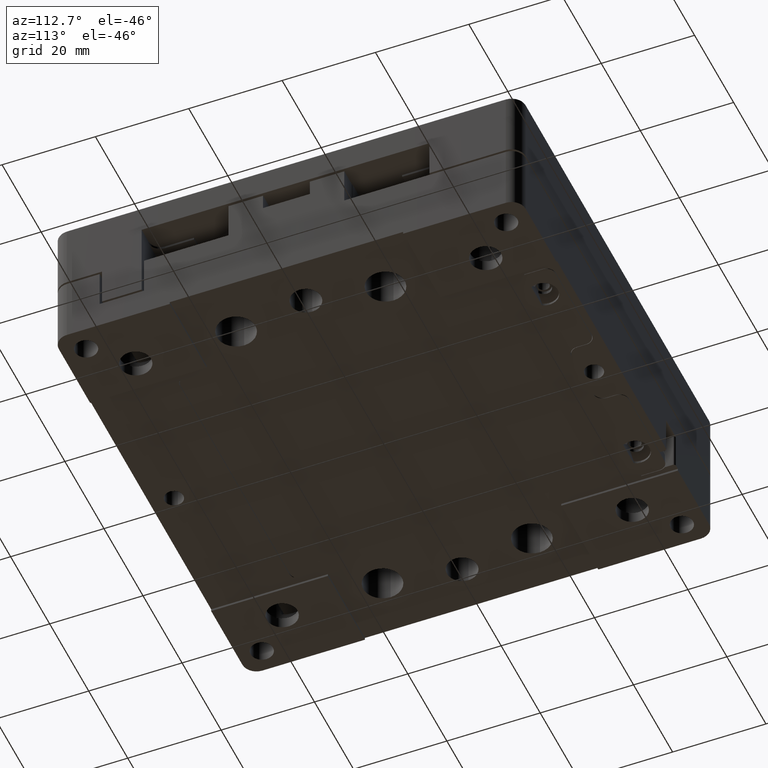
[diagram: clean part render]
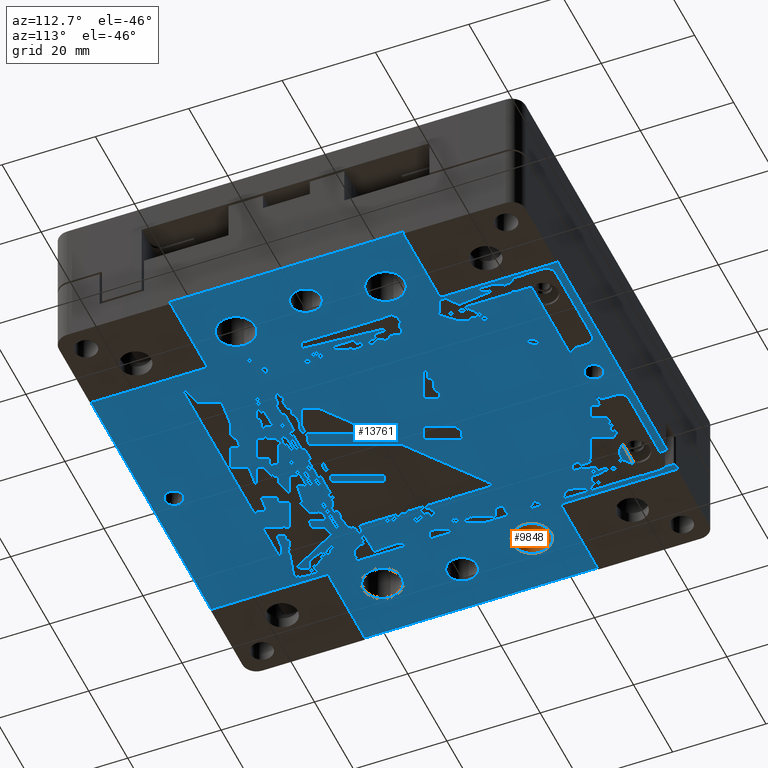
[diagram: same view with the hole feature highlighted: cylindrical wall and planar end face, labeled with their STEP entity ids]
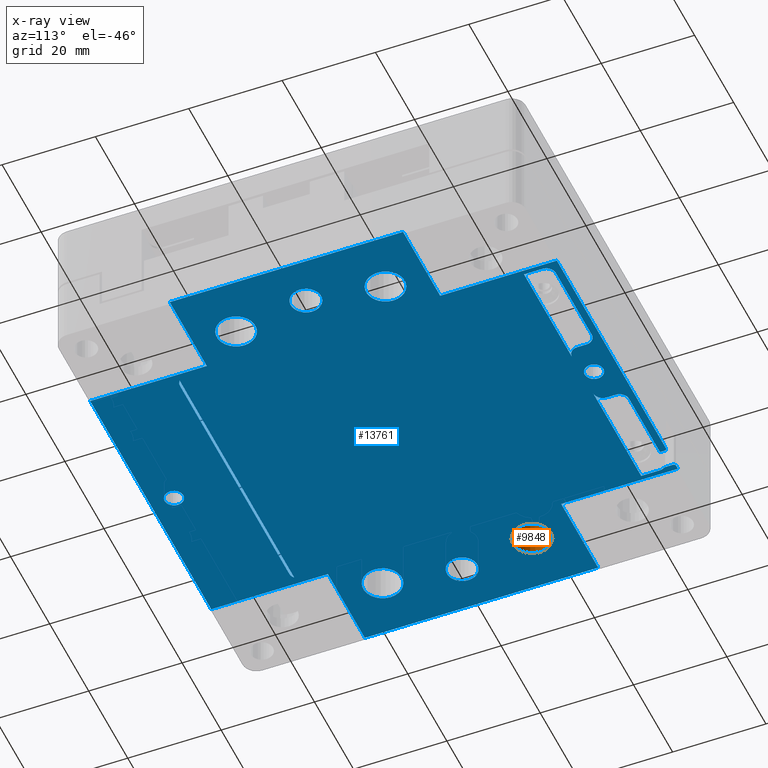
[diagram: x-ray of the same camera — body ghosted, the hole faces saturated]
A machine part, auxiliary view. The highlighted faces form one hole feature of diameter 8.25 mm: the cylindrical wall (entity #9848, orange) and its adjacent planar end face (entity #13761, blue) — they share a circular edge in the B-rep.
The next image is the same camera in x-ray (body ghosted, the hole faces saturated) — the bore reads through the body.
Wall:
#220 = AXIS2_PLACEMENT_3D ( 'NONE', #3022, #4112, #14363 ) ;
#705 = CARTESIAN_POINT ( 'NONE',  ( -41.62499999999999289, 16.00000000000000000, -4.000000000000001776 ) ) ;
#903 = EDGE_LOOP ( 'NONE', ( #3231 ) ) ;
#1030 = DIRECTION ( 'NONE',  ( 0.000000000000000000, 0.000000000000000000, -1.000000000000000000 ) ) ;
#1107 = DIRECTION ( 'NONE',  ( -1.000000000000000000, 0.000000000000000000, 0.000000000000000000 ) ) ;
#2699 = CARTESIAN_POINT ( 'NONE',  ( -37.50000000000000000, 16.00000000000000000, -14.00000000000000000 ) ) ;
#3022 = CARTESIAN_POINT ( 'NONE',  ( -37.50000000000000000, 16.00000000000000000, -4.000000000000001776 ) ) ;
#3231 = ORIENTED_EDGE ( 'NONE', *, *, #6617, .F. ) ;
#3498 = FACE_OUTER_BOUND ( 'NONE', #8961, .T. ) ;
#4112 = DIRECTION ( 'NONE',  ( 0.000000000000000000, 0.000000000000000000, -1.000000000000000000 ) ) ;
#5965 = CIRCLE ( 'NONE', #8081, 4.124999999999996447 ) ;
#6147 = CYLINDRICAL_SURFACE ( 'NONE', #6336, 4.124999999999996447 ) ;
#6336 = AXIS2_PLACEMENT_3D ( 'NONE', #7316, #1030, #1107 ) ;
#6516 = DIRECTION ( 'NONE',  ( -1.000000000000000000, 0.000000000000000000, 0.000000000000000000 ) ) ;
#6617 = EDGE_CURVE ( 'NONE', #12866, #12866, #5965, .T. ) ;
#7316 = CARTESIAN_POINT ( 'NONE',  ( -37.50000000000000000, 16.00000000000000000, 11.83399999999999963 ) ) ;
#8081 = AXIS2_PLACEMENT_3D ( 'NONE', #2699, #12789, #6516 ) ;
#8961 = EDGE_LOOP ( 'NONE', ( #15619 ) ) ;
#9848 = ADVANCED_FACE ( 'NONE', ( #3498, #16242 ), #6147, .F. ) ;
#10752 = EDGE_CURVE ( 'NONE', #13515, #13515, #12082, .T. ) ;
#12082 = CIRCLE ( 'NONE', #220, 4.124999999999996447 ) ;
#12789 = DIRECTION ( 'NONE',  ( -0.000000000000000000, -0.000000000000000000, 1.000000000000000000 ) ) ;
#12866 = VERTEX_POINT ( 'NONE', #15424 ) ;
#13515 = VERTEX_POINT ( 'NONE', #705 ) ;
#14363 = DIRECTION ( 'NONE',  ( -1.000000000000000000, 0.000000000000000000, 0.000000000000000000 ) ) ;
#15424 = CARTESIAN_POINT ( 'NONE',  ( -41.62499999999999289, 16.00000000000000000, -14.00000000000000000 ) ) ;
#15619 = ORIENTED_EDGE ( 'NONE', *, *, #10752, .F. ) ;
#16242 = FACE_OUTER_BOUND ( 'NONE', #903, .T. ) ;
End face:
#34 = EDGE_LOOP ( 'NONE', ( #10427 ) ) ;
#41 = VERTEX_POINT ( 'NONE', #5906 ) ;
#100 = DIRECTION ( 'NONE',  ( -1.000000000000000000, 0.000000000000000000, -0.000000000000000000 ) ) ;
#133 = CIRCLE ( 'NONE', #13113, 4.124999999999996447 ) ;
#172 = CARTESIAN_POINT ( 'NONE',  ( 0.000000000000000000, -32.00000000000000000, -14.00000000000000000 ) ) ;
#224 = CIRCLE ( 'NONE', #3912, 1.999999999999998224 ) ;
#244 = CARTESIAN_POINT ( 'NONE',  ( 0.000000000000000000, 48.50000000000000000, -14.00000000000000000 ) ) ;
#295 = ORIENTED_EDGE ( 'NONE', *, *, #3668, .T. ) ;
#352 = VERTEX_POINT ( 'NONE', #2844 ) ;
#377 = EDGE_CURVE ( 'NONE', #10018, #10954, #5140, .T. ) ;
#605 = DIRECTION ( 'NONE',  ( -1.000000000000000000, 0.000000000000000000, -0.000000000000000000 ) ) ;
#621 = CARTESIAN_POINT ( 'NONE',  ( 0.000000000000000000, 0.000000000000000000, -14.00000000000000000 ) ) ;
#674 = EDGE_CURVE ( 'NONE', #5287, #5287, #3040, .T. ) ;
#783 = CARTESIAN_POINT ( 'NONE',  ( 37.50000000000000000, -16.00000000000000000, -14.00000000000000000 ) ) ;
#899 = CARTESIAN_POINT ( 'NONE',  ( 40.00000000000000000, 0.000000000000000000, -14.00000000000000000 ) ) ;
#974 = DIRECTION ( 'NONE',  ( -1.000000000000000000, 0.000000000000000000, 0.000000000000000000 ) ) ;
#1028 = CARTESIAN_POINT ( 'NONE',  ( 31.00000000000000000, 0.000000000000000000, -14.00000000000000000 ) ) ;
#1105 = LINE ( 'NONE', #1028, #10948 ) ;
#1122 = DIRECTION ( 'NONE',  ( -0.000000000000000000, -0.000000000000000000, 1.000000000000000000 ) ) ;
#1147 = CARTESIAN_POINT ( 'NONE',  ( -50.00000000000000000, 0.000000000000000000, -14.00000000000000000 ) ) ;
#1156 = VECTOR ( 'NONE', #15170, 1000.000000000000000 ) ;
#1178 = DIRECTION ( 'NONE',  ( -0.000000000000000000, -0.000000000000000000, 1.000000000000000000 ) ) ;
#1184 = VERTEX_POINT ( 'NONE', #9182 ) ;
#1211 = VECTOR ( 'NONE', #7906, 1000.000000000000000 ) ;
#1302 = CARTESIAN_POINT ( 'NONE',  ( -24.89999999999999858, 49.50000000000000000, -13.99999999999999822 ) ) ;
#1349 = VERTEX_POINT ( 'NONE', #4904 ) ;
#1482 = DIRECTION ( 'NONE',  ( -1.000000000000000000, 0.000000000000000000, -0.000000000000000000 ) ) ;
#1489 = EDGE_CURVE ( 'NONE', #2828, #1671, #16030, .T. ) ;
#1520 = EDGE_CURVE ( 'NONE', #14131, #14131, #9936, .T. ) ;
#1525 = EDGE_CURVE ( 'NONE', #6116, #2413, #8092, .T. ) ;
#1592 = DIRECTION ( 'NONE',  ( -0.000000000000000000, -0.000000000000000000, 1.000000000000000000 ) ) ;
#1671 = VERTEX_POINT ( 'NONE', #14046 ) ;
#1712 = CARTESIAN_POINT ( 'NONE',  ( -30.00000000000000000, 46.50000000000000000, -14.00000000000000000 ) ) ;
#1716 = EDGE_LOOP ( 'NONE', ( #5338 ) ) ;
#1742 = LINE ( 'NONE', #5794, #6011 ) ;
#1747 = DIRECTION ( 'NONE',  ( -0.000000000000000000, -0.000000000000000000, 1.000000000000000000 ) ) ;
#1789 = CARTESIAN_POINT ( 'NONE',  ( 30.00000000000000000, 42.54999999999999716, -14.00000000000000000 ) ) ;
#1839 = CARTESIAN_POINT ( 'NONE',  ( 7.500000000000000000, 0.000000000000000000, -14.00000000000000000 ) ) ;
#1865 = EDGE_CURVE ( 'NONE', #10648, #1184, #9943, .T. ) ;
#1867 = VERTEX_POINT ( 'NONE', #10104 ) ;
#1894 = ORIENTED_EDGE ( 'NONE', *, *, #3029, .T. ) ;
#1916 = ORIENTED_EDGE ( 'NONE', *, *, #2617, .T. ) ;
#1965 = CARTESIAN_POINT ( 'NONE',  ( 0.000000000000000000, -25.00000000000000000, -14.00000000000000000 ) ) ;
#1986 = ORIENTED_EDGE ( 'NONE', *, *, #13974, .T. ) ;
#2013 = VERTEX_POINT ( 'NONE', #5318 ) ;
#2017 = FACE_BOUND ( 'NONE', #13599, .T. ) ;
#2170 = FACE_BOUND ( 'NONE', #2457, .T. ) ;
#2276 = LINE ( 'NONE', #9729, #14637 ) ;
#2341 = VERTEX_POINT ( 'NONE', #13656 ) ;
#2364 = ORIENTED_EDGE ( 'NONE', *, *, #2903, .T. ) ;
#2365 = VERTEX_POINT ( 'NONE', #5301 ) ;
#2366 = EDGE_CURVE ( 'NONE', #13954, #2828, #15302, .T. ) ;
#2413 = VERTEX_POINT ( 'NONE', #3976 ) ;
#2416 = CARTESIAN_POINT ( 'NONE',  ( 0.000000000000000000, -45.00000000000000000, -14.00000000000000000 ) ) ;
#2423 = DIRECTION ( 'NONE',  ( -0.000000000000000000, -1.000000000000000000, -0.000000000000000000 ) ) ;
#2449 = DIRECTION ( 'NONE',  ( 0.000000000000000000, 0.000000000000000000, 1.000000000000000000 ) ) ;
#2457 = EDGE_LOOP ( 'NONE', ( #15139 ) ) ;
#2525 = ORIENTED_EDGE ( 'NONE', *, *, #7386, .T. ) ;
#2531 = AXIS2_PLACEMENT_3D ( 'NONE', #10957, #1747, #12918 ) ;
#2617 = EDGE_CURVE ( 'NONE', #1184, #12116, #8377, .T. ) ;
#2678 = VERTEX_POINT ( 'NONE', #3731 ) ;
#2680 = CARTESIAN_POINT ( 'NONE',  ( 50.00000000000000000, 25.00000000000000000, -14.00000000000000000 ) ) ;
#2699 = CARTESIAN_POINT ( 'NONE',  ( -37.50000000000000000, 16.00000000000000000, -14.00000000000000000 ) ) ;
#2737 = VECTOR ( 'NONE', #14130, 1000.000000000000000 ) ;
#2759 = ORIENTED_EDGE ( 'NONE', *, *, #14060, .T. ) ;
#2828 = VERTEX_POINT ( 'NONE', #14253 ) ;
#2844 = CARTESIAN_POINT ( 'NONE',  ( -31.00000000000000000, 25.00000000000000000, -14.00000000000000000 ) ) ;
#2903 = EDGE_CURVE ( 'NONE', #3805, #14624, #1742, .T. ) ;
#3029 = EDGE_CURVE ( 'NONE', #2365, #9607, #11160, .T. ) ;
#3040 = CIRCLE ( 'NONE', #10706, 4.124999999999996447 ) ;
#3078 = DIRECTION ( 'NONE',  ( -0.000000000000000000, -1.000000000000000000, -0.000000000000000000 ) ) ;
#3134 = EDGE_LOOP ( 'NONE', ( #5836 ) ) ;
#3232 = CARTESIAN_POINT ( 'NONE',  ( 7.500000000000000000, 44.54999999999999716, -14.00000000000000000 ) ) ;
#3235 = CARTESIAN_POINT ( 'NONE',  ( -29.60000000000000142, 49.50000000000000000, -13.99999999999999822 ) ) ;
#3241 = CARTESIAN_POINT ( 'NONE',  ( -9.500000000000000000, 46.50000000000000000, -14.00000000000000000 ) ) ;
#3250 = DIRECTION ( 'NONE',  ( 0.000000000000000000, 0.000000000000000000, -1.000000000000000000 ) ) ;
#3311 = DIRECTION ( 'NONE',  ( -0.000000000000000000, -1.000000000000000000, -0.000000000000000000 ) ) ;
#3315 = VECTOR ( 'NONE', #100, 1000.000000000000000 ) ;
#3358 = AXIS2_PLACEMENT_3D ( 'NONE', #14854, #1122, #4839 ) ;
#3369 = DIRECTION ( 'NONE',  ( -1.000000000000000000, 0.000000000000000000, 0.000000000000000000 ) ) ;
#3453 = CARTESIAN_POINT ( 'NONE',  ( -30.00000000000000000, 42.54999999999999716, -14.00000000000000000 ) ) ;
#3480 = VERTEX_POINT ( 'NONE', #3453 ) ;
#3564 = CARTESIAN_POINT ( 'NONE',  ( 37.50000000000000000, 16.00000000000000000, -14.00000000000000000 ) ) ;
#3565 = VECTOR ( 'NONE', #3311, 1000.000000000000000 ) ;
#3668 = EDGE_CURVE ( 'NONE', #14555, #8988, #224, .T. ) ;
#3673 = CIRCLE ( 'NONE', #10814, 4.124999999999996447 ) ;
#3682 = EDGE_CURVE ( 'NONE', #6319, #41, #15189, .T. ) ;
#3731 = CARTESIAN_POINT ( 'NONE',  ( -28.00000000000000000, -32.00000000000000000, -14.00000000000000000 ) ) ;
#3805 = VERTEX_POINT ( 'NONE', #1789 ) ;
#3868 = CARTESIAN_POINT ( 'NONE',  ( -31.00000000000000000, 0.000000000000000000, -14.00000000000000000 ) ) ;
#3912 = AXIS2_PLACEMENT_3D ( 'NONE', #5030, #8816, #6175 ) ;
#3954 = DIRECTION ( 'NONE',  ( 0.000000000000000000, 1.000000000000000000, 0.000000000000000000 ) ) ;
#3976 = CARTESIAN_POINT ( 'NONE',  ( 5.499999999999999112, 42.54999999999999716, -14.00000000000000000 ) ) ;
#3993 = ORIENTED_EDGE ( 'NONE', *, *, #6106, .T. ) ;
#4077 = LINE ( 'NONE', #12926, #4606 ) ;
#4094 = LINE ( 'NONE', #14198, #1211 ) ;
#4151 = VERTEX_POINT ( 'NONE', #2680 ) ;
#4174 = AXIS2_PLACEMENT_3D ( 'NONE', #3241, #9378, #8286 ) ;
#4215 = EDGE_CURVE ( 'NONE', #5646, #8145, #14385, .T. ) ;
#4250 = DIRECTION ( 'NONE',  ( 0.000000000000000000, 0.000000000000000000, -1.000000000000000000 ) ) ;
#4252 = LINE ( 'NONE', #13253, #13477 ) ;
#4275 = CARTESIAN_POINT ( 'NONE',  ( -7.500000000000000000, 44.54999999999999716, -14.00000000000000000 ) ) ;
#4324 = VERTEX_POINT ( 'NONE', #10606 ) ;
#4325 = DIRECTION ( 'NONE',  ( -0.000000000000000000, -0.000000000000000000, 1.000000000000000000 ) ) ;
#4341 = ORIENTED_EDGE ( 'NONE', *, *, #14987, .F. ) ;
#4351 = AXIS2_PLACEMENT_3D ( 'NONE', #2416, #1178, #8872 ) ;
#4362 = ORIENTED_EDGE ( 'NONE', *, *, #6034, .T. ) ;
#4405 = DIRECTION ( 'NONE',  ( 1.000000000000000000, -0.000000000000000000, 0.000000000000000000 ) ) ;
#4431 = CIRCLE ( 'NONE', #3358, 3.250000000000002665 ) ;
#4474 = CARTESIAN_POINT ( 'NONE',  ( 28.00000000000000355, 48.50000000000000000, -14.00000000000000000 ) ) ;
#4483 = CARTESIAN_POINT ( 'NONE',  ( 0.000000000000000000, 50.00000000000000000, -14.00000000000000000 ) ) ;
#4522 = CARTESIAN_POINT ( 'NONE',  ( -9.499999999999998224, 48.50000000000000000, -14.00000000000000000 ) ) ;
#4593 = CARTESIAN_POINT ( 'NONE',  ( -29.60000000000000142, 0.000000000000000000, -14.00000000000000000 ) ) ;
#4606 = VECTOR ( 'NONE', #11687, 1000.000000000000000 ) ;
#4663 = CARTESIAN_POINT ( 'NONE',  ( 28.00000000000000000, 46.50000000000000000, -14.00000000000000000 ) ) ;
#4716 = DIRECTION ( 'NONE',  ( 0.000000000000000000, 1.000000000000000000, 0.000000000000000000 ) ) ;
#4839 = DIRECTION ( 'NONE',  ( -1.000000000000000000, 0.000000000000000000, 0.000000000000000000 ) ) ;
#4892 = VECTOR ( 'NONE', #2423, 1000.000000000000000 ) ;
#4904 = CARTESIAN_POINT ( 'NONE',  ( -2.000000000000000000, -45.00000000000000000, -14.00000000000000000 ) ) ;
#4939 = ORIENTED_EDGE ( 'NONE', *, *, #6105, .T. ) ;
#4940 = DIRECTION ( 'NONE',  ( -0.000000000000000000, -0.000000000000000000, 1.000000000000000000 ) ) ;
#5030 = CARTESIAN_POINT ( 'NONE',  ( -28.00000000000000000, 46.50000000000000000, -14.00000000000000000 ) ) ;
#5080 = ORIENTED_EDGE ( 'NONE', *, *, #1489, .T. ) ;
#5139 = AXIS2_PLACEMENT_3D ( 'NONE', #5399, #4250, #14265 ) ;
#5140 = CIRCLE ( 'NONE', #12532, 0.5000000000000004441 ) ;
#5187 = ORIENTED_EDGE ( 'NONE', *, *, #10085, .T. ) ;
#5215 = CARTESIAN_POINT ( 'NONE',  ( -29.60000000000000142, 47.70000000000000284, -14.00000000000000000 ) ) ;
#5229 = EDGE_CURVE ( 'NONE', #11113, #12832, #9643, .T. ) ;
#5271 = VECTOR ( 'NONE', #8484, 1000.000000000000000 ) ;
#5287 = VERTEX_POINT ( 'NONE', #10645 ) ;
#5301 = CARTESIAN_POINT ( 'NONE',  ( -50.00000000000000000, -25.00000000000000000, -14.00000000000000000 ) ) ;
#5318 = CARTESIAN_POINT ( 'NONE',  ( -25.39999999999999858, 49.50000000000000000, -13.99999999999999822 ) ) ;
#5338 = ORIENTED_EDGE ( 'NONE', *, *, #11740, .T. ) ;
#5345 = VERTEX_POINT ( 'NONE', #7908 ) ;
#5399 = CARTESIAN_POINT ( 'NONE',  ( -5.500000000000000000, 44.54999999999999716, -14.00000000000000000 ) ) ;
#5497 = DIRECTION ( 'NONE',  ( -1.000000000000000000, 0.000000000000000000, 0.000000000000000000 ) ) ;
#5531 = EDGE_CURVE ( 'NONE', #1867, #4151, #4094, .T. ) ;
#5612 = ORIENTED_EDGE ( 'NONE', *, *, #3682, .T. ) ;
#5646 = VERTEX_POINT ( 'NONE', #13344 ) ;
#5658 = FACE_BOUND ( 'NONE', #11640, .T. ) ;
#5662 = AXIS2_PLACEMENT_3D ( 'NONE', #621, #3250, #8295 ) ;
#5668 = EDGE_CURVE ( 'NONE', #14934, #14934, #133, .T. ) ;
#5794 = CARTESIAN_POINT ( 'NONE',  ( 30.00000000000000000, 0.000000000000000000, -14.00000000000000000 ) ) ;
#5802 = LINE ( 'NONE', #12085, #8846 ) ;
#5836 = ORIENTED_EDGE ( 'NONE', *, *, #13913, .T. ) ;
#5906 = CARTESIAN_POINT ( 'NONE',  ( -31.00000000000000000, -25.00000000000000000, -14.00000000000000000 ) ) ;
#5911 = ORIENTED_EDGE ( 'NONE', *, *, #8995, .T. ) ;
#5965 = CIRCLE ( 'NONE', #8081, 4.124999999999996447 ) ;
#5985 = VECTOR ( 'NONE', #11107, 1000.000000000000000 ) ;
#6011 = VECTOR ( 'NONE', #11750, 1000.000000000000000 ) ;
#6034 = EDGE_CURVE ( 'NONE', #9607, #352, #5802, .T. ) ;
#6061 = CARTESIAN_POINT ( 'NONE',  ( -7.500000000000000000, 0.000000000000000000, -14.00000000000000000 ) ) ;
#6105 = EDGE_CURVE ( 'NONE', #15899, #7940, #14820, .T. ) ;
#6106 = EDGE_CURVE ( 'NONE', #8988, #3480, #6959, .T. ) ;
#6116 = VERTEX_POINT ( 'NONE', #3232 ) ;
#6141 = CARTESIAN_POINT ( 'NONE',  ( -24.89999999999999858, 50.00000000000000000, -13.99999999999999822 ) ) ;
#6175 = DIRECTION ( 'NONE',  ( -1.000000000000000000, -1.040834085586085203E-14, 0.000000000000000000 ) ) ;
#6244 = EDGE_CURVE ( 'NONE', #4151, #13954, #16254, .T. ) ;
#6319 = VERTEX_POINT ( 'NONE', #14921 ) ;
#6322 = ORIENTED_EDGE ( 'NONE', *, *, #8142, .T. ) ;
#6434 = DIRECTION ( 'NONE',  ( -1.000000000000000000, 0.000000000000000000, -0.000000000000000000 ) ) ;
#6442 = VECTOR ( 'NONE', #9813, 1000.000000000000000 ) ;
#6516 = DIRECTION ( 'NONE',  ( -1.000000000000000000, 0.000000000000000000, 0.000000000000000000 ) ) ;
#6617 = EDGE_CURVE ( 'NONE', #12866, #12866, #5965, .T. ) ;
#6691 = ORIENTED_EDGE ( 'NONE', *, *, #15336, .T. ) ;
#6701 = CARTESIAN_POINT ( 'NONE',  ( 9.500000000000000000, 48.50000000000000000, -14.00000000000000000 ) ) ;
#6758 = DIRECTION ( 'NONE',  ( 0.000000000000000000, 1.000000000000000000, 0.000000000000000000 ) ) ;
#6818 = EDGE_LOOP ( 'NONE', ( #15645, #7727, #12049, #2525 ) ) ;
#6820 = ORIENTED_EDGE ( 'NONE', *, *, #5229, .T. ) ;
#6849 = AXIS2_PLACEMENT_3D ( 'NONE', #1302, #2449, #11398 ) ;
#6868 = LINE ( 'NONE', #1965, #3315 ) ;
#6910 = EDGE_CURVE ( 'NONE', #12832, #9819, #10731, .T. ) ;
#6959 = LINE ( 'NONE', #11998, #3565 ) ;
#7224 = FACE_BOUND ( 'NONE', #16069, .T. ) ;
#7314 = PLANE ( 'NONE',  #5662 ) ;
#7333 = CARTESIAN_POINT ( 'NONE',  ( 0.000000000000000000, 48.50000000000000000, -14.00000000000000000 ) ) ;
#7334 = LINE ( 'NONE', #14541, #6442 ) ;
#7350 = CARTESIAN_POINT ( 'NONE',  ( -37.50000000000000000, -16.00000000000000000, -14.00000000000000000 ) ) ;
#7373 = VECTOR ( 'NONE', #4716, 1000.000000000000000 ) ;
#7386 = EDGE_CURVE ( 'NONE', #2678, #5646, #15218, .T. ) ;
#7674 = EDGE_LOOP ( 'NONE', ( #8520 ) ) ;
#7727 = ORIENTED_EDGE ( 'NONE', *, *, #13010, .T. ) ;
#7783 = CIRCLE ( 'NONE', #5139, 2.000000000000000000 ) ;
#7802 = VECTOR ( 'NONE', #4405, 1000.000000000000000 ) ;
#7827 = ORIENTED_EDGE ( 'NONE', *, *, #2366, .T. ) ;
#7906 = DIRECTION ( 'NONE',  ( 1.000000000000000000, -0.000000000000000000, 0.000000000000000000 ) ) ;
#7908 = CARTESIAN_POINT ( 'NONE',  ( -43.25000000000000711, 0.000000000000000000, -14.00000000000000000 ) ) ;
#7940 = VERTEX_POINT ( 'NONE', #14458 ) ;
#7993 = ORIENTED_EDGE ( 'NONE', *, *, #5668, .T. ) ;
#8081 = AXIS2_PLACEMENT_3D ( 'NONE', #2699, #12789, #6516 ) ;
#8092 = CIRCLE ( 'NONE', #14181, 2.000000000000000000 ) ;
#8132 = LINE ( 'NONE', #1839, #14392 ) ;
#8142 = EDGE_CURVE ( 'NONE', #5345, #5345, #4431, .T. ) ;
#8145 = VERTEX_POINT ( 'NONE', #9883 ) ;
#8229 = VERTEX_POINT ( 'NONE', #10791 ) ;
#8286 = DIRECTION ( 'NONE',  ( -1.000000000000000000, 0.000000000000000000, 0.000000000000000000 ) ) ;
#8295 = DIRECTION ( 'NONE',  ( -1.000000000000000000, 0.000000000000000000, -0.000000000000000000 ) ) ;
#8377 = CIRCLE ( 'NONE', #4174, 2.000000000000000000 ) ;
#8435 = EDGE_CURVE ( 'NONE', #14624, #11113, #12673, .T. ) ;
#8448 = AXIS2_PLACEMENT_3D ( 'NONE', #4663, #15910, #12436 ) ;
#8484 = DIRECTION ( 'NONE',  ( -0.000000000000000000, -1.000000000000000000, -0.000000000000000000 ) ) ;
#8494 = DIRECTION ( 'NONE',  ( -1.000000000000000000, 0.000000000000000000, 0.000000000000000000 ) ) ;
#8520 = ORIENTED_EDGE ( 'NONE', *, *, #674, .T. ) ;
#8616 = DIRECTION ( 'NONE',  ( -0.000000000000000000, -0.000000000000000000, 1.000000000000000000 ) ) ;
#8645 = CARTESIAN_POINT ( 'NONE',  ( -5.499999999999999112, 42.54999999999999716, -14.00000000000000000 ) ) ;
#8683 = CARTESIAN_POINT ( 'NONE',  ( 30.00000000000000000, 46.50000000000000000, -14.00000000000000000 ) ) ;
#8741 = CARTESIAN_POINT ( 'NONE',  ( 5.500000000000000000, 44.54999999999999716, -14.00000000000000000 ) ) ;
#8753 = EDGE_CURVE ( 'NONE', #8229, #8229, #10041, .T. ) ;
#8816 = DIRECTION ( 'NONE',  ( -0.000000000000000000, -0.000000000000000000, 1.000000000000000000 ) ) ;
#8830 = EDGE_LOOP ( 'NONE', ( #3993, #15167, #2759, #13707, #1916, #5911, #14703, #4341, #4939, #13019, #13352, #14671, #7827, #5080, #5187, #5612, #12050, #1894, #4362, #10802, #11098, #13755, #6691, #295 ) ) ;
#8846 = VECTOR ( 'NONE', #14738, 1000.000000000000000 ) ;
#8872 = DIRECTION ( 'NONE',  ( -1.000000000000000000, 0.000000000000000000, 0.000000000000000000 ) ) ;
#8988 = VERTEX_POINT ( 'NONE', #1712 ) ;
#8995 = EDGE_CURVE ( 'NONE', #12116, #4324, #12972, .T. ) ;
#9155 = CIRCLE ( 'NONE', #13644, 1.999999999999998224 ) ;
#9182 = CARTESIAN_POINT ( 'NONE',  ( -7.500000000000000000, 46.50000000000000000, -14.00000000000000000 ) ) ;
#9378 = DIRECTION ( 'NONE',  ( -0.000000000000000000, -0.000000000000000000, 1.000000000000000000 ) ) ;
#9424 = ORIENTED_EDGE ( 'NONE', *, *, #8753, .T. ) ;
#9448 = DIRECTION ( 'NONE',  ( -0.000000000000000000, -0.000000000000000000, 1.000000000000000000 ) ) ;
#9607 = VERTEX_POINT ( 'NONE', #13268 ) ;
#9643 = LINE ( 'NONE', #7333, #13082 ) ;
#9729 = CARTESIAN_POINT ( 'NONE',  ( 0.000000000000000000, 42.54999999999999716, -14.00000000000000000 ) ) ;
#9771 = AXIS2_PLACEMENT_3D ( 'NONE', #899, #1592, #13169 ) ;
#9813 = DIRECTION ( 'NONE',  ( -0.000000000000000000, 1.000000000000000000, 0.000000000000000000 ) ) ;
#9819 = VERTEX_POINT ( 'NONE', #9865 ) ;
#9865 = CARTESIAN_POINT ( 'NONE',  ( 7.500000000000000000, 46.50000000000000000, -14.00000000000000000 ) ) ;
#9883 = CARTESIAN_POINT ( 'NONE',  ( 29.32287565553114916, -31.50000000000000000, -14.00000000000000000 ) ) ;
#9936 = CIRCLE ( 'NONE', #10205, 2.000000000000000000 ) ;
#9943 = LINE ( 'NONE', #6061, #5985 ) ;
#9985 = DIRECTION ( 'NONE',  ( 0.000000000000000000, 0.000000000000000000, -1.000000000000000000 ) ) ;
#10018 = VERTEX_POINT ( 'NONE', #3235 ) ;
#10041 = CIRCLE ( 'NONE', #9771, 3.250000000000002665 ) ;
#10085 = EDGE_CURVE ( 'NONE', #1671, #6319, #4252, .T. ) ;
#10104 = CARTESIAN_POINT ( 'NONE',  ( 31.00000000000000000, 25.00000000000000000, -14.00000000000000000 ) ) ;
#10155 = LINE ( 'NONE', #12640, #2737 ) ;
#10205 = AXIS2_PLACEMENT_3D ( 'NONE', #14788, #4940, #8494 ) ;
#10254 = VECTOR ( 'NONE', #3954, 1000.000000000000000 ) ;
#10260 = CARTESIAN_POINT ( 'NONE',  ( 0.000000000000000000, -25.00000000000000000, -14.00000000000000000 ) ) ;
#10427 = ORIENTED_EDGE ( 'NONE', *, *, #1520, .T. ) ;
#10447 = CARTESIAN_POINT ( 'NONE',  ( 50.00000000000000000, -25.00000000000000000, -14.00000000000000000 ) ) ;
#10481 = LINE ( 'NONE', #12787, #12881 ) ;
#10606 = CARTESIAN_POINT ( 'NONE',  ( -25.39999999999999503, 48.50000000000000711, -14.00000000000000000 ) ) ;
#10645 = CARTESIAN_POINT ( 'NONE',  ( 33.37500000000000000, 16.00000000000000000, -14.00000000000000000 ) ) ;
#10648 = VERTEX_POINT ( 'NONE', #4275 ) ;
#10686 = EDGE_CURVE ( 'NONE', #352, #12973, #10481, .T. ) ;
#10697 = CARTESIAN_POINT ( 'NONE',  ( -28.00000000000000000, -30.00000000000000000, -14.00000000000000000 ) ) ;
#10706 = AXIS2_PLACEMENT_3D ( 'NONE', #3564, #8616, #13671 ) ;
#10731 = CIRCLE ( 'NONE', #2531, 2.000000000000000000 ) ;
#10765 = CARTESIAN_POINT ( 'NONE',  ( 28.00000000000000000, -30.00000000000000000, -14.00000000000000000 ) ) ;
#10790 = FACE_BOUND ( 'NONE', #1716, .T. ) ;
#10791 = CARTESIAN_POINT ( 'NONE',  ( 36.75000000000000000, 0.000000000000000000, -14.00000000000000000 ) ) ;
#10802 = ORIENTED_EDGE ( 'NONE', *, *, #10686, .T. ) ;
#10814 = AXIS2_PLACEMENT_3D ( 'NONE', #7350, #14794, #3369 ) ;
#10815 = CIRCLE ( 'NONE', #6849, 0.5000000000000004441 ) ;
#10840 = EDGE_LOOP ( 'NONE', ( #7993 ) ) ;
#10872 = DIRECTION ( 'NONE',  ( -0.000000000000000000, -0.000000000000000000, 1.000000000000000000 ) ) ;
#10873 = FACE_OUTER_BOUND ( 'NONE', #8830, .T. ) ;
#10948 = VECTOR ( 'NONE', #12681, 1000.000000000000000 ) ;
#10954 = VERTEX_POINT ( 'NONE', #15141 ) ;
#10957 = CARTESIAN_POINT ( 'NONE',  ( 9.500000000000000000, 46.50000000000000000, -14.00000000000000000 ) ) ;
#10989 = CARTESIAN_POINT ( 'NONE',  ( -31.00000000000000000, 50.00000000000000000, -14.00000000000000000 ) ) ;
#11032 = FACE_BOUND ( 'NONE', #7674, .T. ) ;
#11098 = ORIENTED_EDGE ( 'NONE', *, *, #13499, .F. ) ;
#11107 = DIRECTION ( 'NONE',  ( 0.000000000000000000, 1.000000000000000000, 0.000000000000000000 ) ) ;
#11113 = VERTEX_POINT ( 'NONE', #4474 ) ;
#11160 = LINE ( 'NONE', #1147, #7373 ) ;
#11207 = LINE ( 'NONE', #16267, #1156 ) ;
#11361 = CARTESIAN_POINT ( 'NONE',  ( -41.62499999999999289, -16.00000000000000000, -14.00000000000000000 ) ) ;
#11398 = DIRECTION ( 'NONE',  ( 1.000000000000000000, 0.000000000000000000, 0.000000000000000000 ) ) ;
#11640 = EDGE_LOOP ( 'NONE', ( #15591, #1986, #2364, #14526, #6820, #15539, #16243 ) ) ;
#11687 = DIRECTION ( 'NONE',  ( 1.000000000000000000, -0.000000000000000000, 0.000000000000000000 ) ) ;
#11740 = EDGE_CURVE ( 'NONE', #13685, #13685, #3673, .T. ) ;
#11750 = DIRECTION ( 'NONE',  ( 0.000000000000000000, 1.000000000000000000, 0.000000000000000000 ) ) ;
#11998 = CARTESIAN_POINT ( 'NONE',  ( -30.00000000000000000, 0.000000000000000000, -14.00000000000000000 ) ) ;
#12049 = ORIENTED_EDGE ( 'NONE', *, *, #12590, .T. ) ;
#12050 = ORIENTED_EDGE ( 'NONE', *, *, #12717, .T. ) ;
#12085 = CARTESIAN_POINT ( 'NONE',  ( 0.000000000000000000, 25.00000000000000000, -14.00000000000000000 ) ) ;
#12116 = VERTEX_POINT ( 'NONE', #4522 ) ;
#12188 = FACE_BOUND ( 'NONE', #10840, .T. ) ;
#12262 = FACE_BOUND ( 'NONE', #3134, .T. ) ;
#12335 = VERTEX_POINT ( 'NONE', #8645 ) ;
#12374 = DIRECTION ( 'NONE',  ( 1.000000000000000000, -0.000000000000000000, 0.000000000000000000 ) ) ;
#12436 = DIRECTION ( 'NONE',  ( -1.000000000000000000, 0.000000000000000000, 0.000000000000000000 ) ) ;
#12532 = AXIS2_PLACEMENT_3D ( 'NONE', #15658, #4325, #5497 ) ;
#12590 = EDGE_CURVE ( 'NONE', #2341, #2678, #9155, .T. ) ;
#12594 = VECTOR ( 'NONE', #1482, 1000.000000000000000 ) ;
#12640 = CARTESIAN_POINT ( 'NONE',  ( 0.000000000000000000, -31.50000000000000000, -14.00000000000000000 ) ) ;
#12673 = CIRCLE ( 'NONE', #8448, 1.999999999999998224 ) ;
#12681 = DIRECTION ( 'NONE',  ( -0.000000000000000000, -1.000000000000000000, -0.000000000000000000 ) ) ;
#12717 = EDGE_CURVE ( 'NONE', #41, #2365, #6868, .T. ) ;
#12787 = CARTESIAN_POINT ( 'NONE',  ( -31.00000000000000000, 0.000000000000000000, -14.00000000000000000 ) ) ;
#12789 = DIRECTION ( 'NONE',  ( -0.000000000000000000, -0.000000000000000000, 1.000000000000000000 ) ) ;
#12832 = VERTEX_POINT ( 'NONE', #6701 ) ;
#12866 = VERTEX_POINT ( 'NONE', #15424 ) ;
#12881 = VECTOR ( 'NONE', #6758, 1000.000000000000000 ) ;
#12918 = DIRECTION ( 'NONE',  ( -1.000000000000000000, 0.000000000000000000, 0.000000000000000000 ) ) ;
#12926 = CARTESIAN_POINT ( 'NONE',  ( 0.000000000000000000, 42.54999999999999716, -14.00000000000000000 ) ) ;
#12972 = LINE ( 'NONE', #244, #14549 ) ;
#12973 = VERTEX_POINT ( 'NONE', #10989 ) ;
#13010 = EDGE_CURVE ( 'NONE', #8145, #2341, #10155, .T. ) ;
#13019 = ORIENTED_EDGE ( 'NONE', *, *, #13925, .T. ) ;
#13082 = VECTOR ( 'NONE', #14695, 1000.000000000000000 ) ;
#13105 = VECTOR ( 'NONE', #13461, 1000.000000000000000 ) ;
#13113 = AXIS2_PLACEMENT_3D ( 'NONE', #783, #10872, #15911 ) ;
#13169 = DIRECTION ( 'NONE',  ( -1.000000000000000000, 0.000000000000000000, 0.000000000000000000 ) ) ;
#13253 = CARTESIAN_POINT ( 'NONE',  ( 0.000000000000000000, -50.00000000000000000, -14.00000000000000000 ) ) ;
#13261 = DIRECTION ( 'NONE',  ( -1.000000000000000000, 0.000000000000000000, 0.000000000000000000 ) ) ;
#13268 = CARTESIAN_POINT ( 'NONE',  ( -50.00000000000000000, 25.00000000000000000, -14.00000000000000000 ) ) ;
#13307 = EDGE_CURVE ( 'NONE', #4324, #2013, #7334, .T. ) ;
#13331 = EDGE_CURVE ( 'NONE', #3480, #12335, #2276, .T. ) ;
#13344 = CARTESIAN_POINT ( 'NONE',  ( 28.00000000000000000, -32.00000000000000000, -14.00000000000000000 ) ) ;
#13352 = ORIENTED_EDGE ( 'NONE', *, *, #5531, .T. ) ;
#13461 = DIRECTION ( 'NONE',  ( -0.000000000000000000, -1.000000000000000000, -0.000000000000000000 ) ) ;
#13477 = VECTOR ( 'NONE', #605, 1000.000000000000000 ) ;
#13499 = EDGE_CURVE ( 'NONE', #10954, #12973, #11207, .T. ) ;
#13599 = EDGE_LOOP ( 'NONE', ( #6322 ) ) ;
#13644 = AXIS2_PLACEMENT_3D ( 'NONE', #10697, #15750, #13261 ) ;
#13656 = CARTESIAN_POINT ( 'NONE',  ( -29.32287565553114916, -31.50000000000000000, -14.00000000000000000 ) ) ;
#13671 = DIRECTION ( 'NONE',  ( -1.000000000000000000, 0.000000000000000000, 0.000000000000000000 ) ) ;
#13685 = VERTEX_POINT ( 'NONE', #11361 ) ;
#13707 = ORIENTED_EDGE ( 'NONE', *, *, #1865, .T. ) ;
#13755 = ORIENTED_EDGE ( 'NONE', *, *, #377, .F. ) ;
#13761 = ADVANCED_FACE ( 'NONE', ( #5658, #12188, #2170, #11032, #7224, #10790, #2017, #14598, #12262, #16085, #10873 ), #7314, .T. ) ;
#13913 = EDGE_CURVE ( 'NONE', #1349, #1349, #15173, .T. ) ;
#13925 = EDGE_CURVE ( 'NONE', #7940, #1867, #1105, .T. ) ;
#13954 = VERTEX_POINT ( 'NONE', #10447 ) ;
#13974 = EDGE_CURVE ( 'NONE', #2413, #3805, #4077, .T. ) ;
#14046 = CARTESIAN_POINT ( 'NONE',  ( 31.00000000000000000, -50.00000000000000000, -14.00000000000000000 ) ) ;
#14060 = EDGE_CURVE ( 'NONE', #12335, #10648, #7783, .T. ) ;
#14080 = EDGE_CURVE ( 'NONE', #9819, #6116, #8132, .T. ) ;
#14130 = DIRECTION ( 'NONE',  ( -1.000000000000000000, 0.000000000000000000, -0.000000000000000000 ) ) ;
#14131 = VERTEX_POINT ( 'NONE', #14461 ) ;
#14181 = AXIS2_PLACEMENT_3D ( 'NONE', #8741, #9985, #974 ) ;
#14198 = CARTESIAN_POINT ( 'NONE',  ( 0.000000000000000000, 25.00000000000000000, -14.00000000000000000 ) ) ;
#14253 = CARTESIAN_POINT ( 'NONE',  ( 31.00000000000000000, -25.00000000000000000, -14.00000000000000000 ) ) ;
#14265 = DIRECTION ( 'NONE',  ( -1.000000000000000000, 0.000000000000000000, 0.000000000000000000 ) ) ;
#14385 = CIRCLE ( 'NONE', #14902, 1.999999999999998224 ) ;
#14392 = VECTOR ( 'NONE', #3078, 1000.000000000000000 ) ;
#14458 = CARTESIAN_POINT ( 'NONE',  ( 31.00000000000000000, 50.00000000000000711, -14.00000000000000000 ) ) ;
#14461 = CARTESIAN_POINT ( 'NONE',  ( -2.000000000000000000, 45.00000000000000000, -14.00000000000000000 ) ) ;
#14526 = ORIENTED_EDGE ( 'NONE', *, *, #8435, .T. ) ;
#14541 = CARTESIAN_POINT ( 'NONE',  ( -25.39999999999999858, 40.00000000000000000, -14.00000000000000000 ) ) ;
#14549 = VECTOR ( 'NONE', #6434, 1000.000000000000000 ) ;
#14555 = VERTEX_POINT ( 'NONE', #5215 ) ;
#14598 = FACE_BOUND ( 'NONE', #34, .T. ) ;
#14621 = CARTESIAN_POINT ( 'NONE',  ( 50.00000000000000000, 0.000000000000000000, -14.00000000000000000 ) ) ;
#14624 = VERTEX_POINT ( 'NONE', #8683 ) ;
#14637 = VECTOR ( 'NONE', #12374, 1000.000000000000000 ) ;
#14671 = ORIENTED_EDGE ( 'NONE', *, *, #6244, .T. ) ;
#14695 = DIRECTION ( 'NONE',  ( -1.000000000000000000, 0.000000000000000000, -0.000000000000000000 ) ) ;
#14703 = ORIENTED_EDGE ( 'NONE', *, *, #13307, .T. ) ;
#14738 = DIRECTION ( 'NONE',  ( 1.000000000000000000, -0.000000000000000000, 0.000000000000000000 ) ) ;
#14788 = CARTESIAN_POINT ( 'NONE',  ( 0.000000000000000000, 45.00000000000000000, -14.00000000000000000 ) ) ;
#14794 = DIRECTION ( 'NONE',  ( -0.000000000000000000, -0.000000000000000000, 1.000000000000000000 ) ) ;
#14820 = LINE ( 'NONE', #4483, #7802 ) ;
#14854 = CARTESIAN_POINT ( 'NONE',  ( -40.00000000000000000, 0.000000000000000000, -14.00000000000000000 ) ) ;
#14902 = AXIS2_PLACEMENT_3D ( 'NONE', #10765, #9448, #15347 ) ;
#14921 = CARTESIAN_POINT ( 'NONE',  ( -31.00000000000000000, -50.00000000000000000, -14.00000000000000000 ) ) ;
#14934 = VERTEX_POINT ( 'NONE', #16353 ) ;
#14987 = EDGE_CURVE ( 'NONE', #15899, #2013, #10815, .T. ) ;
#15139 = ORIENTED_EDGE ( 'NONE', *, *, #6617, .T. ) ;
#15141 = CARTESIAN_POINT ( 'NONE',  ( -30.10000000000000142, 50.00000000000000000, -13.99999999999999822 ) ) ;
#15167 = ORIENTED_EDGE ( 'NONE', *, *, #13331, .T. ) ;
#15170 = DIRECTION ( 'NONE',  ( -1.000000000000000000, -0.000000000000000000, 0.000000000000000000 ) ) ;
#15173 = CIRCLE ( 'NONE', #4351, 2.000000000000000000 ) ;
#15189 = LINE ( 'NONE', #3868, #10254 ) ;
#15218 = LINE ( 'NONE', #172, #15507 ) ;
#15302 = LINE ( 'NONE', #10260, #12594 ) ;
#15336 = EDGE_CURVE ( 'NONE', #10018, #14555, #16017, .T. ) ;
#15347 = DIRECTION ( 'NONE',  ( -1.000000000000000000, 1.734723475976808672E-15, 0.000000000000000000 ) ) ;
#15424 = CARTESIAN_POINT ( 'NONE',  ( -41.62499999999999289, 16.00000000000000000, -14.00000000000000000 ) ) ;
#15507 = VECTOR ( 'NONE', #15550, 1000.000000000000000 ) ;
#15539 = ORIENTED_EDGE ( 'NONE', *, *, #6910, .T. ) ;
#15550 = DIRECTION ( 'NONE',  ( 1.000000000000000000, -0.000000000000000000, 0.000000000000000000 ) ) ;
#15591 = ORIENTED_EDGE ( 'NONE', *, *, #1525, .T. ) ;
#15645 = ORIENTED_EDGE ( 'NONE', *, *, #4215, .T. ) ;
#15658 = CARTESIAN_POINT ( 'NONE',  ( -30.10000000000000142, 49.50000000000000000, -13.99999999999999822 ) ) ;
#15750 = DIRECTION ( 'NONE',  ( -0.000000000000000000, -0.000000000000000000, 1.000000000000000000 ) ) ;
#15899 = VERTEX_POINT ( 'NONE', #6141 ) ;
#15910 = DIRECTION ( 'NONE',  ( -0.000000000000000000, -0.000000000000000000, 1.000000000000000000 ) ) ;
#15911 = DIRECTION ( 'NONE',  ( -1.000000000000000000, 0.000000000000000000, 0.000000000000000000 ) ) ;
#16017 = LINE ( 'NONE', #4593, #5271 ) ;
#16030 = LINE ( 'NONE', #16362, #13105 ) ;
#16069 = EDGE_LOOP ( 'NONE', ( #9424 ) ) ;
#16085 = FACE_BOUND ( 'NONE', #6818, .T. ) ;
#16243 = ORIENTED_EDGE ( 'NONE', *, *, #14080, .T. ) ;
#16254 = LINE ( 'NONE', #14621, #4892 ) ;
#16267 = CARTESIAN_POINT ( 'NONE',  ( -50.00000000000000000, 50.00000000000000000, -14.00000000000000000 ) ) ;
#16353 = CARTESIAN_POINT ( 'NONE',  ( 33.37500000000000000, -16.00000000000000000, -14.00000000000000000 ) ) ;
#16362 = CARTESIAN_POINT ( 'NONE',  ( 31.00000000000000000, 0.000000000000000000, -14.00000000000000000 ) ) ;